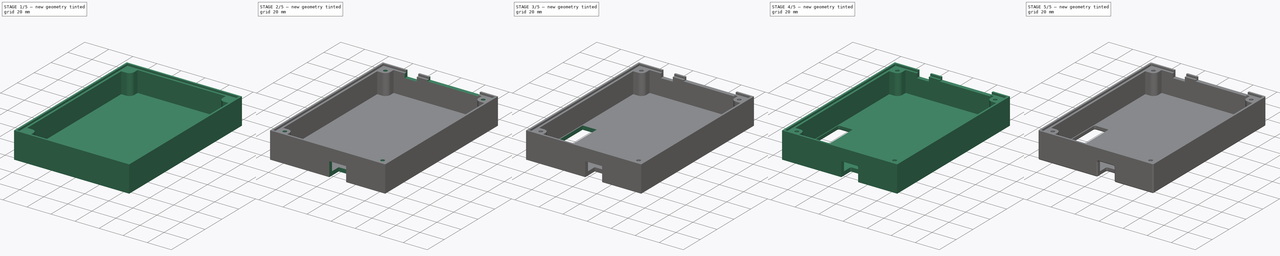
[diagram: build sequence overview — one tinted view per stage of 5, left to right]
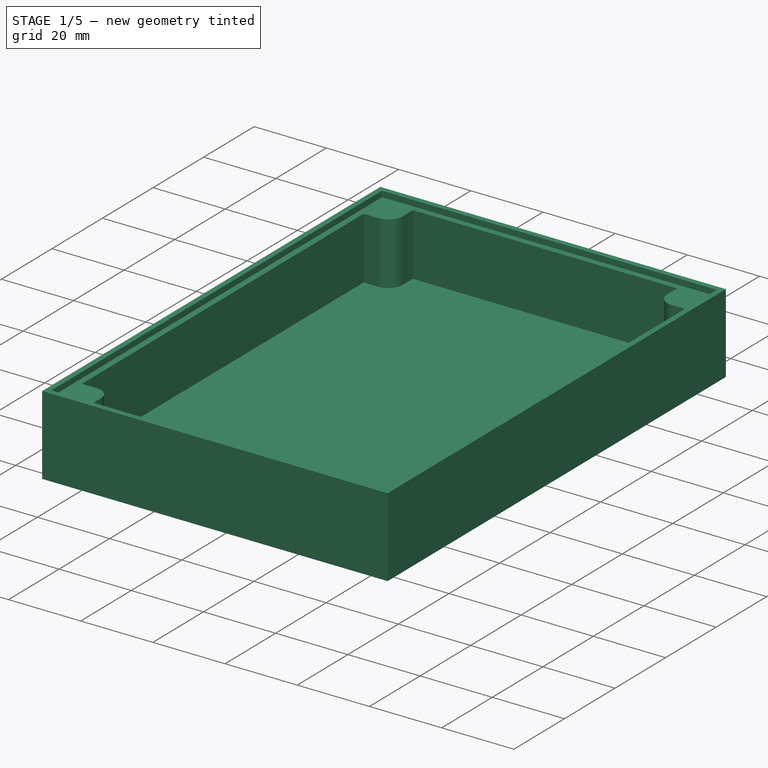
[diagram: stage 1 of 5 — iso view after this stage's code; geometry added in this stage tinted green]
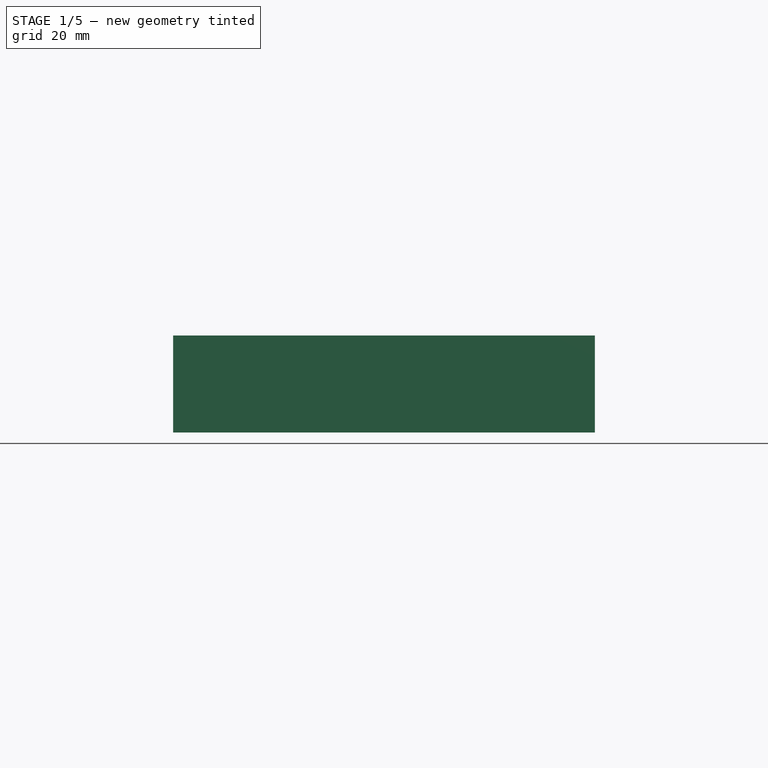
[diagram: stage 1 of 5 — front view after this stage's code; geometry added in this stage tinted green]
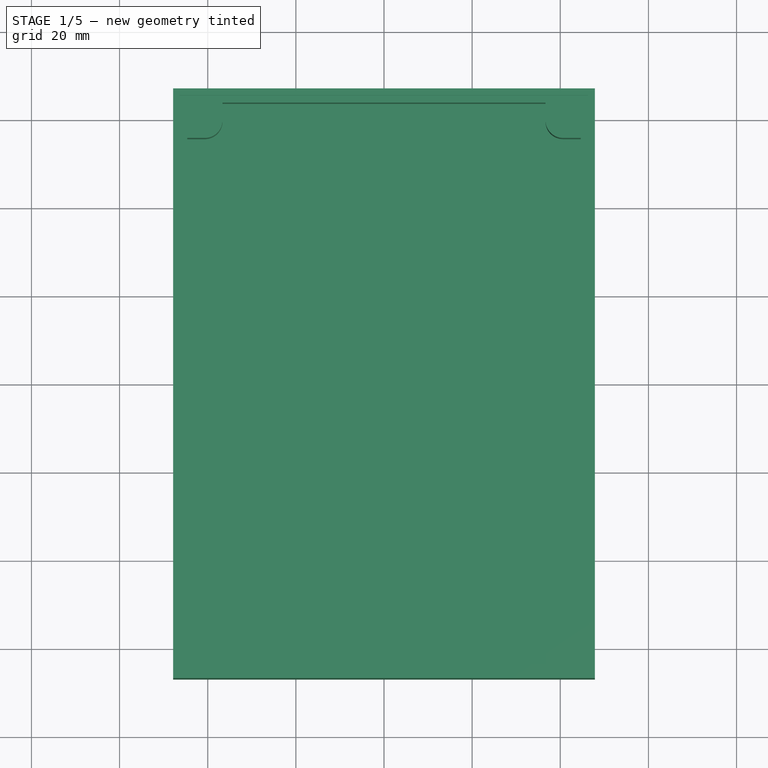
[diagram: stage 1 of 5 — top view after this stage's code; geometry added in this stage tinted green]
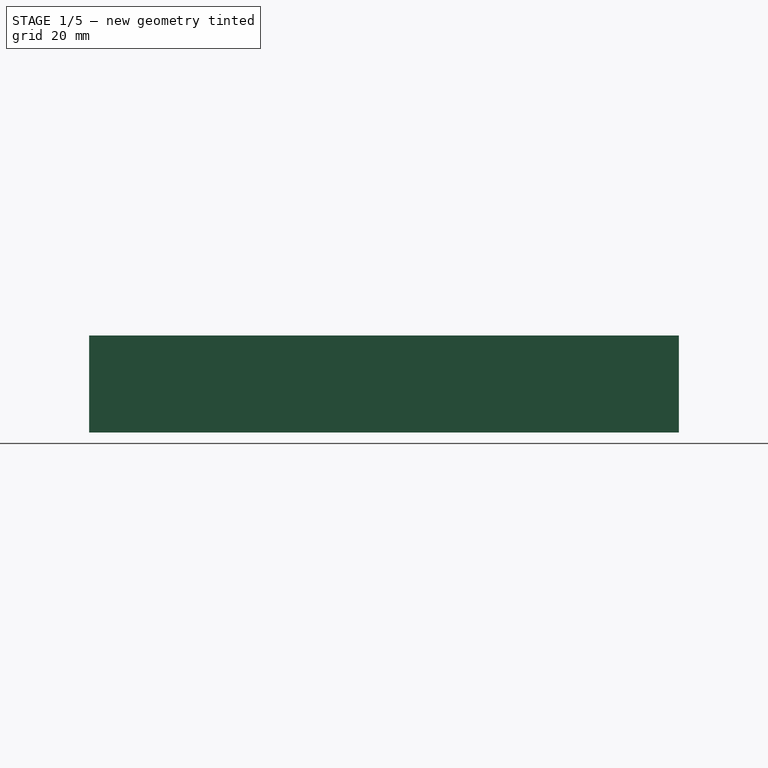
[diagram: stage 1 of 5 — right view after this stage's code; geometry added in this stage tinted green]
FCSTD DOCUMENT  (FreeCAD 0.20R29177 (Git))
Label: enclosure_top
License: All rights reserved
LicenseURL: http://en.wikipedia.org/wiki/All_rights_reserved
objects: Sketcher::SketchObject×12, PartDesign::Pocket×10, PartDesign::Fillet×5, PartDesign::Pad×4, Part::Part2DObjectPython×4, PartDesign::Plane×3, Spreadsheet::Sheet×1, PartDesign::Body×1
note: 58 computed .brp shape members not serialized (recipe doc carries the construction recipe); baked Part::Feature solids carry a one-line shape summary decoded from their .brp

FEATURE [Spreadsheet::Sheet] Spreadsheet
  cells = A2=PCB Dimensions; A3=PCBLength; B3(PCBLength)==127mm; A4=PCBWidth; B4(PCBWidth)==88.90000000000001mm; A5=PCBThickness; B5(PCBThickness)==1.6mm; A6=PCBTermTabLength; B6(PCBTermTabLength)==17.8mm; A7=PCBTermTabWidth; B7(PCBTermTabWidth)==38.1mm; A8=PCBTermTabOffsetLeft; B8(PCBTermTabOffsetLeft)==12.7mm; A9=PCBTermTabOffsetRight; B9(PCBTermTabOffsetRight)==38.1mm; A10=PCBTermTabCenterFromLeft; B10(PCBTermTabCenterFromLeft)==PCBTermTabOffsetLeft + 0.5 * PCBTermTabWidth; A11=PCB3PinConnCenterFromRight; B11(PCB3PinConnCenterFromRight)==22.1mm; A12=PCB3PinConnWidth; B12(PCB3PinConnWidth)==8mm; A13=PCB3PinConnHeight; B13(PCB3PinConnHeight)==2.6mm; A14=PCBMountHoleLength; B14(PCBMountHoleLength)==119.38mm; A15=PCBMountHoleWidth; B15(PCBMountHoleWidth)==81.28mm; A16=PCBMountHoleDiameter; B16(PCBMountHoleDiameter)==3.1mm; C16=4-40; A17=PCBMountScrewHeadDiameter; B17(PCBMountScrewHeadDiameter)==5.6mm; A18=PCBMountScrewHeadHeight; B18(PCBMountScrewHeadHeight)==2mm; A19=PCBComponentHeight; B19(PCBComponentHeight)==16.2mm; A20=PCBTeensyCenterFromLeft; B20(PCBTeensyCenterFromLeft)==36.068mm; A21=PCBTeensyUSBConnLength; B21(PCBTeensyUSBConnLength)==8mm; A22=PCBTeensyUSBConnClearanceHeight; B22(PCBTeensyUSBConnClearanceHeight)==10mm; A23=PCBHeader5X2ToCenterX; B23(PCBHeader5X2ToCenterX)==38.1mm; A24=PCBHeader5X2ToCenterY; B24(PCBHeader5X2ToCenterY)==29.464mm; A25=PCBHeader5X2Length; B25(PCBHeader5X2Length)==46.2mm; A26=PCBHeader5X2Width; B26(PCBHeader5X2Width)==9.699999999999999mm; A28=Margins; A29=MarginOutsideBorder; B29(MarginOutsideBorder)==0.2mm; A30=MarginInsideBorder; B30(MarginInsideBorder)==0mm; A31=MarginPCBComponents; B31(MarginPCBComponents)==1mm; A32=MarginTopBottomLip; B32(MarginTopBottomLip)==0.2mm; A33=MarginMountHoleHexNut; B33(MarginMountHoleHexNut)==0.1mm; A34=MarginTermTabCutoutSide; B34(MarginTermTabCutoutSide)==2mm; A35=MarginTermTabCutoutDepth; B35(MarginTermTabCutoutDepth)==1mm; A36=MarginPinConnCutoutSide; B36(MarginPinConnCutoutSide)==1mm; A37=MarginPinConnCutoutDepth; B37(MarginPinConnCutoutDepth)==1mm; A38=MarginMountScrewHeadDiameter; B38(MarginMountScrewHeadDiameter)==1mm; A39=MarginMountScrewHeadDepth; B39(MarginMountScrewHeadDepth)==0.5mm; A40=MarginHeader5X2; B40(MarginHeader5X2)==1mm; A42=Enclosure Dimensions; A43=Length; B43(Length)==PCBLength + 2 * MarginOutsideBorder + 2 * WallThickness; A44=Width; B44(Width)==PCBWidth + 2 * MarginOutsideBorder + 2 * WallThickness; A45=WallThickness; B45(WallThickness)==3.2mm; A46=InsideLength; B46(InsideLength)==Length - 2 * WallThickness - 2 * MarginInsideBorder; A47=InsideWidth; B47(InsideWidth)==Width - 2 * WallThickness - 2 * MarginInsideBorder; A48=SideWallHeight; B48(SideWallHeight)==PCBComponentHeight + MarginPCBComponents; A49=LipDatumPlaneHeight; B49(LipDatumPlaneHeight)==WallThickness + SideWallHeight + LipHeight; A50=LipThickness; B50(LipThickness)==0.5 * WallThickness - 0.5 * MarginTopBottomLip; A51=LipHeight; B51(LipHeight)==PCBThickness; A52=LipInsideLength; B52(LipInsideLength)==Length - 2 * LipThickness; A53=LipInsideWidth; B53(LipInsideWidth)==Width - 2 * LipThickness; A54=LipOutsideLength; B54(LipOutsideLength)==Length; A55=LipOutsideWidth; B55(LipOutsideWidth)==Width; A56=MountHoleBossDiameter; B56(MountHoleBossDiameter)==8mm; A57=MountHoleHexNutThickness; B57(MountHoleHexNutThickness)==0.0625in; C57=4-40, McMaster-Carr 90760A160; A58=MountHoleHexNutShortDiagonal; B58(MountHoleHexNutShortDiagonal)==0.1875in; A59=MountHoleHexNutLongDiagonal; B59(MountHoleHexNutLongDiagonal)==2 * MountHoleHexNutShortDiagonal / sqrt(3); A60=MountHoleHexNutSideLength; B60(MountHoleHexNutSideLength)==MountHoleHexNutShortDiagonal / sqrt(3); A61=MountHoleHexPocketLongDiagonal; B61(MountHoleHexPocketLongDiagonal)==MountHoleHexNutLongDiagonal + 2 * MarginMountHoleHexNut; A62=MountHoleHexPocketDepth; B62(MountHoleHexPocketDepth)==MountHoleHexNutThickness + 2 * MarginMountHoleHexNut; A63=RubberFootHoleDiameter; B63(RubberFootHoleDiameter)==13mm; A64=RubberFootHoleDepth; B64(RubberFootHoleDepth)==0.75mm; A65=RubberFootPatternOffset; B65(RubberFootPatternOffset)==20mm; A66=RubberFootPatternLength; B66(RubberFootPatternLength)==PCBMountHoleLength - RubberFootPatternOffset; A67=RubberFootPatternWidth; B67(RubberFootPatternWidth)==PCBMountHoleWidth - RubberFootPatternOffset; A68=TermTabCutoutCenterX; B68(TermTabCutoutCenterX)==0.5 * PCBWidth - PCBTermTabCenterFromLeft; A69=TermTabCutoutBotomY; B69(TermTabCutoutBotomY)==0.5 * Length - 0.75 * TermTabCutoutLength; A70=TermTabCutoutLength; B70(TermTabCutoutLength)==2 * WallThickness; A71=TermTabCutoutWidth; B71(TermTabCutoutWidth)==PCBTermTabWidth + 2 * MarginTermTabCutoutSide; A72=TermTabCutoutDepth; B72(TermTabCutoutDepth)==PCBThickness + MarginTermTabCutoutDepth; A73=PinConnCutoutCenterX; B73(PinConnCutoutCenterX)==0.5 * PCBWidth - PCB3PinConnCenterFromRight; A74=PinConnCutoutBottomY; B74(PinConnCutoutBottomY)==0.5 * Length - 0.75 * PinConnCutoutLength; A75=PinConnCutoutLength; B75(PinConnCutoutLength)==2 * WallThickness; A76=PinConnCutoutWidth; B76(PinConnCutoutWidth)==PCB3PinConnWidth + 2 * MarginPinConnCutoutSide; A77=PinConnCutoutDepth; B77(PinConnCutoutDepth)==PCBThickness + PCB3PinConnHeight + MarginPinConnCutoutDepth; A78=TeensyCutoutCenterX; B78(TeensyCutoutCenterX)==0.5 * PCBWidth - PCBTeensyCenterFromLeft; A79=TeensyCutoutTopY; B79(TeensyCutoutTopY)==0.5 * Length - 0.5 * TeensyCutoutLength; A80=TeensyCutoutWidth; B80(TeensyCutoutWidth)==14mm; A81=TeensyCutoutLength; B81(TeensyCutoutLength)==2 * (PCBTeensyUSBConnLength + MarginInsideBorder + WallThickness); A82=TeensyCutoutDepth; B82(TeensyCutoutDepth)==WallThickness + SideWallHeight + LipHeight - PCBTeensyUSBConnClearanceHeight; A83=MountScrewHeadCutoutDiameter; B83(MountScrewHeadCutoutDiameter)==PCBMountScrewHeadDiameter + MarginMountScrewHeadDiameter; A84=MountScrewHeadCutoutDepth; B84(MountScrewHeadCutoutDepth)==PCBMountScrewHeadHeight + MarginMountScrewHeadDepth; A85=Header5X2CutoutCenterX; B85(Header5X2CutoutCenterX)==PCBHeader5X2ToCenterX; A86=Header5X2CutoutCenterY; B86(Header5X2CutoutCenterY)==PCBHeader5X2ToCenterY; A87=Header5X2CutoutLength; B87(Header5X2CutoutLength)==PCBHeader5X2Length + 2 * MarginHeader5X2; A88=Header5X2CutoutWidth; B88(Header5X2CutoutWidth)==PCBHeader5X2Width + 2 * MarginHeader5X2; A89=OutsideFilletRadius; B89(OutsideFilletRadius)==1mm; A90=LipFilletRadius; B90(LipFilletRadius)==0.75mm; A91=USBCutoutFilletRadius; B91(USBCutoutFilletRadius)==1mm; A92=Header5X2CutoutFillet; B92(Header5X2CutoutFillet)==1mm; A93=RodeostatTextLength; B93(RodeostatTextLength)==85.122mm; A94=RodeostatTextWidth; B94(RodeostatTextWidth)==9.396000000000001mm; A95=RodeostatTextBoxLength; B95(RodeostatTextBoxLength)==RodeostatTextLength + 1mm; A96=RodeostatTextBoxWidth; B96(RodeostatTextBoxWidth)==RodeostatTextWidth + 1mm; A97=RodeostatTextPositionX; B97(RodeostatTextPositionX)==-(0.5 * RodeostatTextWidth + 0mm); A98=RodeostatTextPositionY; B98(RodeostatTextPositionY)==-(0.5 * RodeostatTextLength + 0mm); A99=RodeostatTextDepth; B99(RodeostatTextDepth)==0.5mm; A101=Electrode Labels; A102=ElectrodeLabelSize; B102(ElectrodeLabelSize)==2.2mm; A103=WRKElectrodeString; B103(WRKElectrodeString)=W; A104=WRKElectrodePosX; B104(WRKElectrodePosX)==-27.7mm; A105=WRKElectrodePosY; B105(WRKElectrodePosY)==66.90000000000001mm; +20 more cells
FEATURE [Sketcher::SketchObject] Sketch  label="TopSketch"
  FullyConstrained = true
  MapMode = 5
  Support = -> [XY_Plane]
  expr: Constraints[10] = Spreadsheet.Width
  expr: Constraints[9] = Spreadsheet.Length
  sketch-geometry (4):
    g0: LineSegment StartX=-47.85 StartY=66.9 StartZ=0 EndX=47.85 EndY=66.9 EndZ=0
    g1: LineSegment StartX=47.85 StartY=66.9 StartZ=0 EndX=47.85 EndY=-66.9 EndZ=0
    g2: LineSegment StartX=47.85 StartY=-66.9 StartZ=0 EndX=-47.85 EndY=-66.9 EndZ=0
    g3: LineSegment StartX=-47.85 StartY=-66.9 StartZ=0 EndX=-47.85 EndY=66.9 EndZ=0
  constraints (11):
    c: Coincident(g0,g1)
    c: Coincident(g1,g2)
    c: Coincident(g2,g3)
    c: Coincident(g3,g0)
    c: Horizontal(g0)
    c: Horizontal(g2)
    c: Vertical(g1)
    c: Vertical(g3)
    c: Symmetric(g0,g1,g-1)
    c: Distance(g1) = 133.8
    c: Distance(g2) = 95.7
FEATURE [PartDesign::Pad] Pad  label="TopPad"
  Direction = (0,0,1)
  Length = 3.2
  Length2 = 10
  Profile = -> Sketch
  ReferenceAxis = -> Sketch [N_Axis]
  Type = 0
  expr: Length = Spreadsheet.WallThickness
FEATURE [PartDesign::Plane] DatumPlane  label="InsideRoofDatumPlane"
  AttachmentOffset = pos=(0,0,3.2) rot=(0,0,1;0rad)
  Length = 118.332
  MapMode = 5
  Placement = pos=(0,0,3.2) rot=(0,0,1;0rad)
  ResizeMode = 0
  Support = -> [XY_Plane]
  Width = 156.432
  expr: .AttachmentOffset.Base.z = Spreadsheet.WallThickness
FEATURE [Sketcher::SketchObject] Sketch001  label="SideWallSketch"
  FullyConstrained = true
  MapMode = 5
  Placement = pos=(0,0,3.2) rot=(0,0,1;0rad)
  Support = -> [DatumPlane]
  expr: Constraints[10] = Spreadsheet.Width
  expr: Constraints[20] = Spreadsheet.InsideLength
  expr: Constraints[21] = Spreadsheet.InsideWidth
  expr: Constraints[9] = Spreadsheet.Length
  sketch-geometry (8):
    g0: LineSegment StartX=-47.85 StartY=66.9 StartZ=0 EndX=47.85 EndY=66.9 EndZ=0
    g1: LineSegment StartX=47.85 StartY=66.9 StartZ=0 EndX=47.85 EndY=-66.9 EndZ=0
    g2: LineSegment StartX=47.85 StartY=-66.9 StartZ=0 EndX=-47.85 EndY=-66.9 EndZ=0
    g3: LineSegment StartX=-47.85 StartY=-66.9 StartZ=0 EndX=-47.85 EndY=66.9 EndZ=0
    g4: LineSegment StartX=-44.65 StartY=63.7 StartZ=0 EndX=44.65 EndY=63.7 EndZ=0
    g5: LineSegment StartX=44.65 StartY=63.7 StartZ=0 EndX=44.65 EndY=-63.7 EndZ=0
    g6: LineSegment StartX=44.65 StartY=-63.7 StartZ=0 EndX=-44.65 EndY=-63.7 EndZ=0
    g7: LineSegment StartX=-44.65 StartY=-63.7 StartZ=0 EndX=-44.65 EndY=63.7 EndZ=0
  constraints (22):
    c: Coincident(g0,g1)
    c: Coincident(g1,g2)
    c: Coincident(g2,g3)
    c: Coincident(g3,g0)
    c: Horizontal(g0)
    c: Horizontal(g2)
    c: Vertical(g1)
    c: Vertical(g3)
    c: Symmetric(g0,g1,g-1)
    c: Distance(g1) = 133.8
    c: Distance(g2) = 95.7
    c: Coincident(g4,g5)
    c: Coincident(g5,g6)
    c: Coincident(g6,g7)
    c: Coincident(g7,g4)
    c: Horizontal(g4)
    c: Horizontal(g6)
    c: Vertical(g5)
    c: Vertical(g7)
    c: Symmetric(g4,g5,g-1)
    c: Distance(g5) = 127.4
    c: Distance(g6) = 89.3
FEATURE [PartDesign::Pad] Pad001  label="SideWallPad"
  BaseFeature = -> Pad
  Direction = (0,0,1)
  Length = 17.2
  Length2 = 10
  Profile = -> Sketch001
  ReferenceAxis = -> Sketch001 [N_Axis]
  Type = 0
  expr: Length = Spreadsheet.SideWallHeight
FEATURE [PartDesign::Plane] DatumPlane001  label="LipDatumPlane"
  AttachmentOffset = pos=(0,0,22) rot=(0,0,1;0rad)
  Length = 118.332
  MapMode = 5
  Placement = pos=(0,0,22) rot=(0,0,1;0rad)
  ResizeMode = 0
  Support = -> [XY_Plane]
  Width = 156.432
  expr: .AttachmentOffset.Base.z = Spreadsheet.LipDatumPlaneHeight
FEATURE [Sketcher::SketchObject] Sketch002  label="LipSketch"
  FullyConstrained = true
  MapMode = 5
  Placement = pos=(0,0,22) rot=(0,0,1;0rad)
  Support = -> [DatumPlane001]
  expr: Constraints[10] = Spreadsheet.LipInsideWidth
  expr: Constraints[20] = Spreadsheet.LipOutsideLength
  expr: Constraints[21] = Spreadsheet.LipOutsideWidth
  expr: Constraints[9] = Spreadsheet.LipInsideLength
  sketch-geometry (8):
    g0: LineSegment StartX=-46.35 StartY=65.4 StartZ=0 EndX=46.35 EndY=65.4 EndZ=0
    g1: LineSegment StartX=46.35 StartY=65.4 StartZ=0 EndX=46.35 EndY=-65.4 EndZ=0
    g2: LineSegment StartX=46.35 StartY=-65.4 StartZ=0 EndX=-46.35 EndY=-65.4 EndZ=0
    g3: LineSegment StartX=-46.35 StartY=-65.4 StartZ=0 EndX=-46.35 EndY=65.4 EndZ=0
    g4: LineSegment StartX=-47.85 StartY=66.9 StartZ=0 EndX=47.85 EndY=66.9 EndZ=0
    g5: LineSegment StartX=47.85 StartY=66.9 StartZ=0 EndX=47.85 EndY=-66.9 EndZ=0
    g6: LineSegment StartX=47.85 StartY=-66.9 StartZ=0 EndX=-47.85 EndY=-66.9 EndZ=0
    g7: LineSegment StartX=-47.85 StartY=-66.9 StartZ=0 EndX=-47.85 EndY=66.9 EndZ=0
  constraints (22):
    c: Coincident(g0,g1)
    c: Coincident(g1,g2)
    c: Coincident(g2,g3)
    c: Coincident(g3,g0)
    c: Horizontal(g0)
    c: Horizontal(g2)
    c: Vertical(g1)
    c: Vertical(g3)
    c: Symmetric(g0,g1,g-1)
    c: Distance(g1) = 130.8
    c: Distance(g2) = 92.7
    c: Coincident(g4,g5)
    c: Coincident(g5,g6)
    c: Coincident(g6,g7)
    c: Coincident(g7,g4)
    c: Horizontal(g4)
    c: Horizontal(g6)
    c: Vertical(g5)
    c: Vertical(g7)
    c: Symmetric(g4,g5,g-1)
    c: Distance(g5) = 133.8
    c: Distance(g6) = 95.7
FEATURE [PartDesign::Pad] Pad002  label="LipPad"
  BaseFeature = -> Pad001
  Direction = (0,0,1)
  Length = 1.6
  Length2 = 10
  Profile = -> Sketch002
  ReferenceAxis = -> Sketch002 [N_Axis]
  Reversed = true
  Type = 0
  expr: Length = Spreadsheet.LipHeight
FEATURE [Sketcher::SketchObject] Sketch003  label="MountHoleBossSketch"
  FullyConstrained = true
  MapMode = 5
  Placement = pos=(0,0,3.2) rot=(0,0,1;0rad)
  Support = -> [DatumPlane]
  expr: Constraints[10] = Spreadsheet.LipInsideWidth
  expr: Constraints[20] = Spreadsheet.PCBMountHoleLength
  expr: Constraints[21] = Spreadsheet.PCBMountHoleWidth
  expr: Constraints[35] = Spreadsheet.MountHoleBossDiameter
  expr: Constraints[49] = Spreadsheet.MountHoleBossDiameter
  expr: Constraints[63] = Spreadsheet.MountHoleBossDiameter
  expr: Constraints[77] = Spreadsheet.MountHoleBossDiameter
  expr: Constraints[9] = Spreadsheet.LipInsideLength
  sketch-geometry (28):
    g0: LineSegment StartX=-46.35 StartY=65.4 StartZ=0 EndX=46.35 EndY=65.4 EndZ=0
    g1: LineSegment StartX=46.35 StartY=65.4 StartZ=0 EndX=46.35 EndY=-65.4 EndZ=0
    g2: LineSegment StartX=46.35 StartY=-65.4 StartZ=0 EndX=-46.35 EndY=-65.4 EndZ=0
    g3: LineSegment StartX=-46.35 StartY=-65.4 StartZ=0 EndX=-46.35 EndY=65.4 EndZ=0
    g4: LineSegment StartX=-40.64 StartY=59.69 StartZ=0 EndX=40.64 EndY=59.69 EndZ=0
    g5: LineSegment StartX=40.64 StartY=59.69 StartZ=0 EndX=40.64 EndY=-59.69 EndZ=0
    g6: LineSegment StartX=40.64 StartY=-59.69 StartZ=0 EndX=-40.64 EndY=-59.69 EndZ=0
    g7: LineSegment StartX=-40.64 StartY=-59.69 StartZ=0 EndX=-40.64 EndY=59.69 EndZ=0
    g8: ArcOfCircle CenterX=-40.64 CenterY=59.69 CenterZ=0 NormalX=0 NormalY=0 NormalZ=1 AngleXU=0 Radius=4 StartAngle=4.71239 EndAngle=6.28319
    g9: LineSegment StartX=-46.35 StartY=55.69 StartZ=0 EndX=-40.64 EndY=55.69 EndZ=0
    g10: LineSegment StartX=-36.64 StartY=65.4 StartZ=0 EndX=-36.64 EndY=59.69 EndZ=0
    g11: LineSegment StartX=-46.35 StartY=55.69 StartZ=0 EndX=-46.35 EndY=65.4 EndZ=0
    g12: LineSegment StartX=-46.35 StartY=65.4 StartZ=0 EndX=-36.64 EndY=65.4 EndZ=0
    g13: ArcOfCircle CenterX=40.64 CenterY=59.69 CenterZ=0 NormalX=0 NormalY=0 NormalZ=1 AngleXU=0 Radius=4 StartAngle=3.14159 EndAngle=4.71239
    g14: LineSegment StartX=36.64 StartY=65.4 StartZ=0 EndX=36.64 EndY=59.69 EndZ=0
    g15: LineSegment StartX=40.64 StartY=55.69 StartZ=0 EndX=46.35 EndY=55.69 EndZ=0
    g16: LineSegment StartX=36.64 StartY=65.4 StartZ=0 EndX=46.35 EndY=65.4 EndZ=0
    g17: LineSegment StartX=46.35 StartY=65.4 StartZ=0 EndX=46.35 EndY=55.69 EndZ=0
    g18: ArcOfCircle CenterX=-40.64 CenterY=-59.69 CenterZ=0 NormalX=0 NormalY=0 NormalZ=1 AngleXU=0 Radius=4 StartAngle=1.2e-15 EndAngle=1.5708
    g19: LineSegment StartX=-36.64 StartY=-59.69 StartZ=0 EndX=-36.64 EndY=-65.4 EndZ=0
    g20: LineSegment StartX=-40.64 StartY=-55.69 StartZ=0 EndX=-46.35 EndY=-55.69 EndZ=0
    g21: LineSegment StartX=-46.35 StartY=-65.4 StartZ=0 EndX=-36.64 EndY=-65.4 EndZ=0
    g22: LineSegment StartX=-46.35 StartY=-55.69 StartZ=0 EndX=-46.35 EndY=-65.4 EndZ=0
    g23: ArcOfCircle CenterX=40.64 CenterY=-59.69 CenterZ=0 NormalX=0 NormalY=0 NormalZ=1 AngleXU=0 Radius=4 StartAngle=1.5708 EndAngle=3.14159
    g24: LineSegment StartX=40.64 StartY=-55.69 StartZ=0 EndX=46.35 EndY=-55.69 EndZ=0
    g25: LineSegment StartX=36.64 StartY=-59.69 StartZ=0 EndX=36.64 EndY=-65.4 EndZ=0
    g26: LineSegment StartX=46.35 StartY=-55.69 StartZ=0 EndX=46.35 EndY=-65.4 EndZ=0
    g27: LineSegment StartX=36.64 StartY=-65.4 StartZ=0 EndX=46.35 EndY=-65.4 EndZ=0
  constraints (78):
    c: Coincident(g0,g1)
    c: Coincident(g1,g2)
    c: Coincident(g2,g3)
    c: Coincident(g3,g0)
    c: Horizontal(g0)
    c: Horizontal(g2)
    c: Vertical(g1)
    c: Vertical(g3)
    c: Symmetric(g0,g1,g-1)
    c: Distance(g1) = 130.8
    c: Distance(g2) = 92.7
    c: Coincident(g4,g5)
    c: Coincident(g5,g6)
    c: Coincident(g6,g7)
    c: Coincident(g7,g4)
    c: Horizontal(g4)
    c: Horizontal(g6)
    c: Vertical(g5)
    c: Vertical(g7)
    c: Symmetric(g4,g5,g-1)
    c: Distance(g5) = 119.38
    c: Distance(g6) = 81.28
    c: Coincident(g8,g4)
    c: PointOnObject(g8,g4)
    c: PointOnObject(g8,g7)
    c: Horizontal(g9)
    c: Vertical(g10)
    c: Coincident(g10,g8)
    c: Coincident(g9,g8)
    c: PointOnObject(g9,g3)
    c: PointOnObject(g10,g0)
    c: Coincident(g11,g0)
    c: Coincident(g11,g9)
    c: Coincident(g12,g10)
    c: Coincident(g12,g11)
    c: Diameter(g8) = 8
    c: Coincident(g13,g4)
    c: PointOnObject(g13,g4)
    c: PointOnObject(g13,g5)
    c: Vertical(g14)
    c: Horizontal(g15)
    c: Coincident(g13,g15)
    c: Coincident(g14,g13)
    c: PointOnObject(g15,g1)
    c: PointOnObject(g14,g0)
    c: Coincident(g14,g16)
    c: Coincident(g16,g0)
    c: Coincident(g17,g16)
    c: Coincident(g17,g15)
    c: Diameter(g13) = 8
    c: Coincident(g6,g18)
    c: PointOnObject(g18,g7)
    c: PointOnObject(g18,g6)
    c: Vertical(g19)
    c: Horizontal(g20)
    c: Coincident(g19,g18)
    c: PointOnObject(g19,g2)
    c: Coincident(g20,g18)
    c: PointOnObject(g20,g3)
    c: Coincident(g21,g19)
    c: Coincident(g21,g2)
    c: Coincident(g22,g21)
    c: Coincident(g22,g20)
    c: Diameter(g18) = 8
    c: Coincident(g23,g5)
    c: PointOnObject(g23,g5)
    c: PointOnObject(g23,g6)
    c: Horizontal(g24)
    c: Vertical(g25)
    c: Coincident(g23,g24)
    c: Coincident(g25,g23)
    c: PointOnObject(g24,g1)
    c: PointOnObject(g25,g2)
    c: Coincident(g24,g26)
    c: Coincident(g26,g1)
    c: Coincident(g27,g26)
    c: Coincident(g27,g25)
    c: Diameter(g23) = 8
FEATURE [PartDesign::Pad] Pad003  label="MountHoleBossPad"
  BaseFeature = -> Pad002
  Direction = (0,0,1)
  Length = 17.2
  Length2 = 10
  Profile = -> Sketch003
  ReferenceAxis = -> Sketch003 [N_Axis]
  Type = 0
  expr: Length = Spreadsheet.SideWallHeight
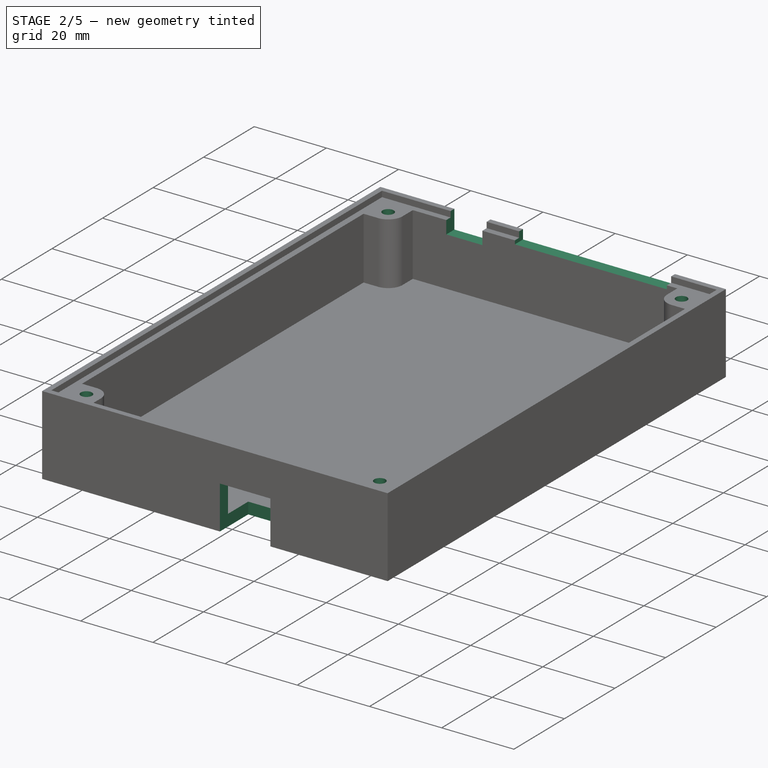
[diagram: stage 2 of 5 — iso view after this stage's code; geometry added in this stage tinted green]
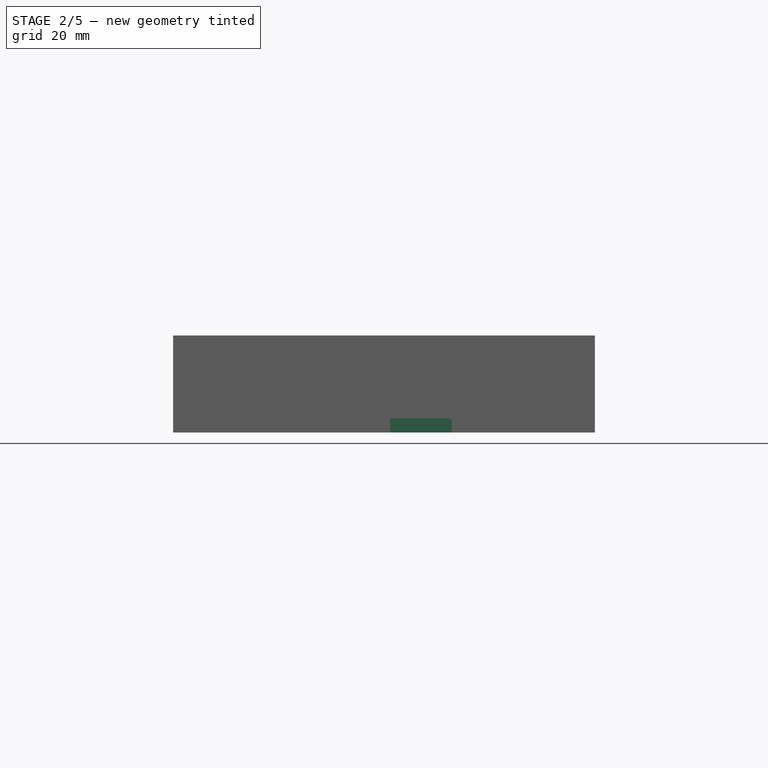
[diagram: stage 2 of 5 — front view after this stage's code; geometry added in this stage tinted green]
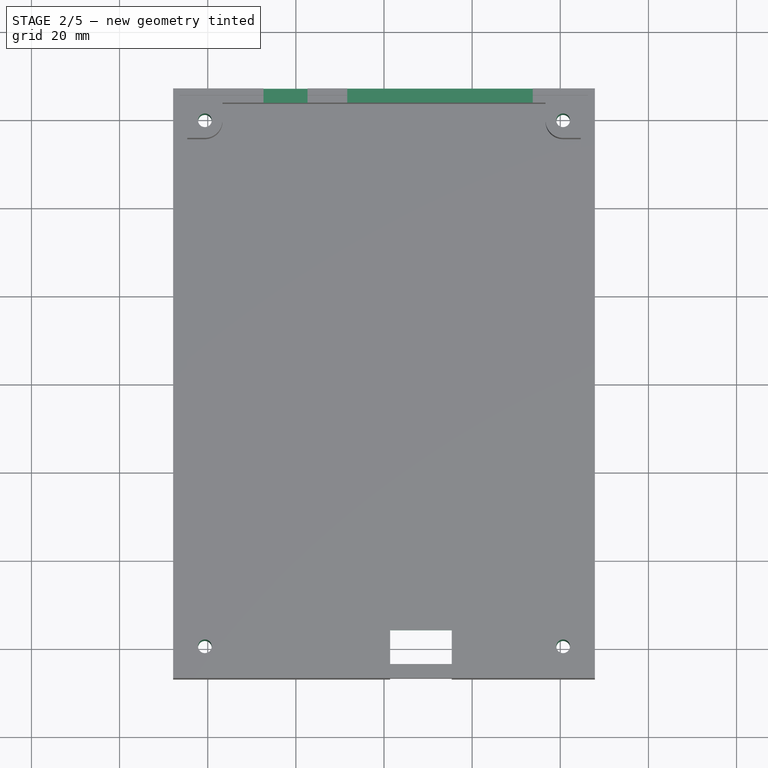
[diagram: stage 2 of 5 — top view after this stage's code; geometry added in this stage tinted green]
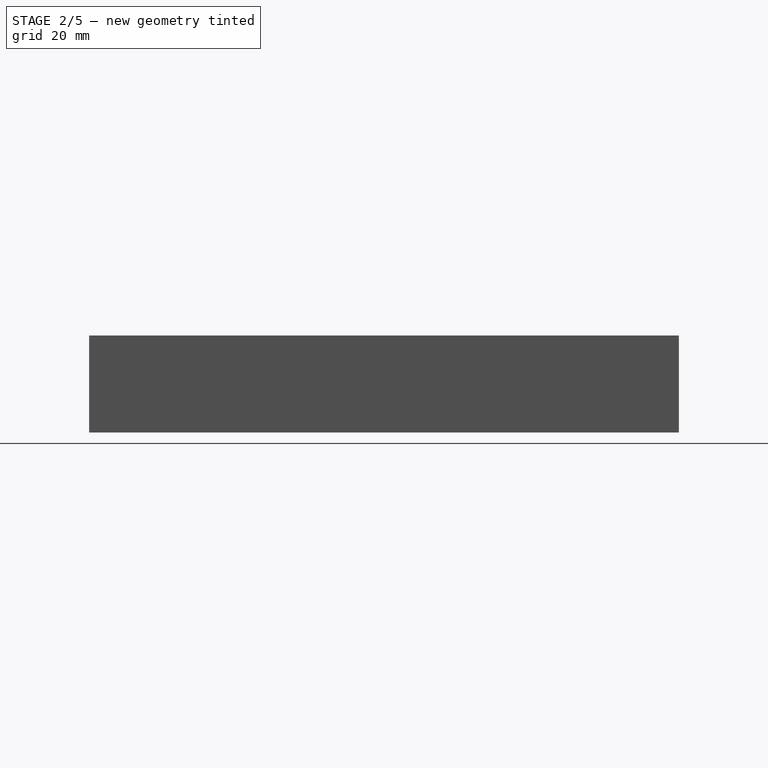
[diagram: stage 2 of 5 — right view after this stage's code; geometry added in this stage tinted green]
FEATURE [Sketcher::SketchObject] Sketch004  label="MountHoleSketch"
  FullyConstrained = true
  MapMode = 5
  Placement = pos=(0,0,22) rot=(0,0,1;0rad)
  Support = -> [DatumPlane001]
  expr: Constraints[10] = Spreadsheet.PCBMountHoleWidth
  expr: Constraints[18] = Spreadsheet.PCBMountHoleDiameter
  expr: Constraints[9] = Spreadsheet.PCBMountHoleLength
  sketch-geometry (8):
    g0: LineSegment StartX=-40.64 StartY=59.69 StartZ=0 EndX=40.64 EndY=59.69 EndZ=0
    g1: LineSegment StartX=40.64 StartY=59.69 StartZ=0 EndX=40.64 EndY=-59.69 EndZ=0
    g2: LineSegment StartX=40.64 StartY=-59.69 StartZ=0 EndX=-40.64 EndY=-59.69 EndZ=0
    g3: LineSegment StartX=-40.64 StartY=-59.69 StartZ=0 EndX=-40.64 EndY=59.69 EndZ=0
    g4: Circle CenterX=-40.64 CenterY=59.69 CenterZ=0 NormalX=0 NormalY=0 NormalZ=1 AngleXU=0 Radius=1.55
    g5: Circle CenterX=40.64 CenterY=59.69 CenterZ=0 NormalX=0 NormalY=0 NormalZ=1 AngleXU=0 Radius=1.55
    g6: Circle CenterX=-40.64 CenterY=-59.69 CenterZ=0 NormalX=0 NormalY=0 NormalZ=1 AngleXU=0 Radius=1.55
    g7: Circle CenterX=40.64 CenterY=-59.69 CenterZ=0 NormalX=0 NormalY=0 NormalZ=1 AngleXU=0 Radius=1.55
  constraints (19):
    c: Coincident(g0,g1)
    c: Coincident(g1,g2)
    c: Coincident(g2,g3)
    c: Coincident(g3,g0)
    c: Horizontal(g0)
    c: Horizontal(g2)
    c: Vertical(g1)
    c: Vertical(g3)
    c: Symmetric(g0,g1,g-1)
    c: Distance(g1) = 119.38
    c: Distance(g2) = 81.28
    c: Equal(g4,g5)
    c: Equal(g5,g7)
    c: Equal(g7,g6)
    c: Coincident(g4,g0)
    c: Coincident(g5,g0)
    c: Coincident(g7,g1)
    c: Coincident(g6,g2)
    c: Diameter(g4) = 3.1
FEATURE [PartDesign::Pocket] Pocket  label="MountHolePocket"
  BaseFeature = -> Pad003
  Direction = (0,0,-1)
  Length = 5
  Length2 = 5
  Profile = -> Sketch004
  ReferenceAxis = -> Sketch004 [N_Axis]
  Type = 1
FEATURE [Sketcher::SketchObject] Sketch007  label="TermTabCutoutSketch"
  FullyConstrained = true
  MapMode = 5
  Placement = pos=(0,0,22) rot=(0,0,1;0rad)
  Support = -> [DatumPlane001]
  expr: Constraints[14] = Spreadsheet.TermTabCutoutWidth
  expr: Constraints[15] = Spreadsheet.TermTabCutoutLength
  expr: Constraints[16] = Spreadsheet.TermTabCutoutCenterX
  expr: Constraints[4] = Spreadsheet.TermTabCutoutBotomY
  sketch-geometry (6):
    g0: LineSegment StartX=0 StartY=0 StartZ=0 EndX=12.7 EndY=0 EndZ=0
    g1: LineSegment StartX=12.7 StartY=0 StartZ=0 EndX=12.7 EndY=62.1 EndZ=0
    g2: LineSegment StartX=-8.35 StartY=68.5 StartZ=0 EndX=33.75 EndY=68.5 EndZ=0
    g3: LineSegment StartX=33.75 StartY=68.5 StartZ=0 EndX=33.75 EndY=62.1 EndZ=0
    g4: LineSegment StartX=33.75 StartY=62.1 StartZ=0 EndX=-8.35 EndY=62.1 EndZ=0
    g5: LineSegment StartX=-8.35 StartY=62.1 StartZ=0 EndX=-8.35 EndY=68.5 EndZ=0
  constraints (17):
    c: Horizontal(g0)
    c: Coincident(g0,g1)
    c: Vertical(g1)
    c: Coincident(g-1,g0)
    c: Distance(g1) = 62.1
    c: Coincident(g2,g3)
    c: Coincident(g3,g4)
    c: Coincident(g4,g5)
    c: Coincident(g5,g2)
    c: Horizontal(g2)
    c: Horizontal(g4)
    c: Vertical(g3)
    c: Vertical(g5)
    c: Symmetric(g4,g3,g1)
    c: Distance(g2) = 42.1
    c: Distance(g3) = 6.4
    c: Distance(g0) = 12.7
FEATURE [Sketcher::SketchObject] Sketch008  label="PinConnCutoutSketch"
  FullyConstrained = true
  MapMode = 5
  Placement = pos=(0,0,22) rot=(0,0,1;0rad)
  Support = -> [DatumPlane001]
  expr: Constraints[14] = Spreadsheet.PinConnCutoutWidth
  expr: Constraints[15] = Spreadsheet.PinConnCutoutLength
  expr: Constraints[16] = Spreadsheet.PinConnCutoutCenterX
  expr: Constraints[4] = Spreadsheet.PinConnCutoutBottomY
  sketch-geometry (6):
    g0: LineSegment StartX=0 StartY=0 StartZ=0 EndX=-22.35 EndY=0 EndZ=0
    g1: LineSegment StartX=-22.35 StartY=0 StartZ=0 EndX=-22.35 EndY=62.1 EndZ=0
    g2: LineSegment StartX=-27.35 StartY=68.5 StartZ=0 EndX=-17.35 EndY=68.5 EndZ=0
    g3: LineSegment StartX=-17.35 StartY=68.5 StartZ=0 EndX=-17.35 EndY=62.1 EndZ=0
    g4: LineSegment StartX=-17.35 StartY=62.1 StartZ=0 EndX=-27.35 EndY=62.1 EndZ=0
    g5: LineSegment StartX=-27.35 StartY=62.1 StartZ=0 EndX=-27.35 EndY=68.5 EndZ=0
  constraints (17):
    c: Horizontal(g0)
    c: Coincident(g0,g1)
    c: Vertical(g1)
    c: Coincident(g-1,g0)
    c: Distance(g1) = 62.1
    c: Coincident(g2,g3)
    c: Coincident(g3,g4)
    c: Coincident(g4,g5)
    c: Coincident(g5,g2)
    c: Horizontal(g2)
    c: Horizontal(g4)
    c: Vertical(g3)
    c: Vertical(g5)
    c: Symmetric(g4,g3,g1)
    c: Distance(g4) = 10
    c: Distance(g3) = 6.4
    c: Distance(g0) = 22.35
FEATURE [PartDesign::Pocket] Pocket001  label="TermTabCutoutPocket"
  BaseFeature = -> Pocket
  Direction = (0,0,-1)
  Length = 2.6
  Length2 = 5
  Profile = -> Sketch007
  ReferenceAxis = -> Sketch007 [N_Axis]
  Type = 0
  expr: Length = Spreadsheet.TermTabCutoutDepth
FEATURE [PartDesign::Pocket] Pocket002  label="PinConnCutoutPocket"
  BaseFeature = -> Pocket001
  Direction = (0,0,-1)
  Length = 5.2
  Length2 = 5
  Profile = -> Sketch008
  ReferenceAxis = -> Sketch008 [N_Axis]
  Type = 0
  expr: Length = Spreadsheet.PinConnCutoutDepth
FEATURE [Sketcher::SketchObject] Sketch009  label="TeensyCutoutSketch"
  FullyConstrained = true
  MapMode = 5
  Support = -> [XY_Plane]
  expr: Constraints[15] = Spreadsheet.TeensyCutoutLength
  expr: Constraints[16] = Spreadsheet.TeensyCutoutWidth
  expr: Constraints[2] = Spreadsheet.TeensyCutoutTopY
  expr: Constraints[3] = Spreadsheet.TeensyCutoutCenterX
  sketch-geometry (6):
    g0: LineSegment StartX=8.382 StartY=0 StartZ=0 EndX=8.382 EndY=-55.7 EndZ=0
    g1: LineSegment StartX=0 StartY=0 StartZ=0 EndX=8.382 EndY=0 EndZ=0
    g2: LineSegment StartX=1.382 StartY=-55.7 StartZ=0 EndX=15.382 EndY=-55.7 EndZ=0
    g3: LineSegment StartX=15.382 StartY=-55.7 StartZ=0 EndX=15.382 EndY=-78.1 EndZ=0
    g4: LineSegment StartX=15.382 StartY=-78.1 StartZ=0 EndX=1.382 EndY=-78.1 EndZ=0
    g5: LineSegment StartX=1.382 StartY=-78.1 StartZ=0 EndX=1.382 EndY=-55.7 EndZ=0
  constraints (17):
    c: Vertical(g0)
    c: Horizontal(g1)
    c: Distance(g0) = 55.7
    c: Distance(g1) = 8.382
    c: Coincident(g0,g1)
    c: Coincident(g1,g-1)
    c: Coincident(g2,g3)
    c: Coincident(g3,g4)
    c: Coincident(g4,g5)
    c: Coincident(g5,g2)
    c: Horizontal(g2)
    c: Horizontal(g4)
    c: Vertical(g3)
    c: Vertical(g5)
    c: Symmetric(g2,g2,g0)
    c: Distance(g3) = 22.4
    c: Distance(g4) = 14
FEATURE [PartDesign::Pocket] Pocket003  label="TeensyCutoutPocket"
  BaseFeature = -> Pocket002
  Direction = (0,0,-1)
  Length = 12
  Length2 = 5
  Profile = -> Sketch009
  ReferenceAxis = -> Sketch009 [N_Axis]
  Reversed = true
  Type = 0
  expr: Length = Spreadsheet.TeensyCutoutDepth
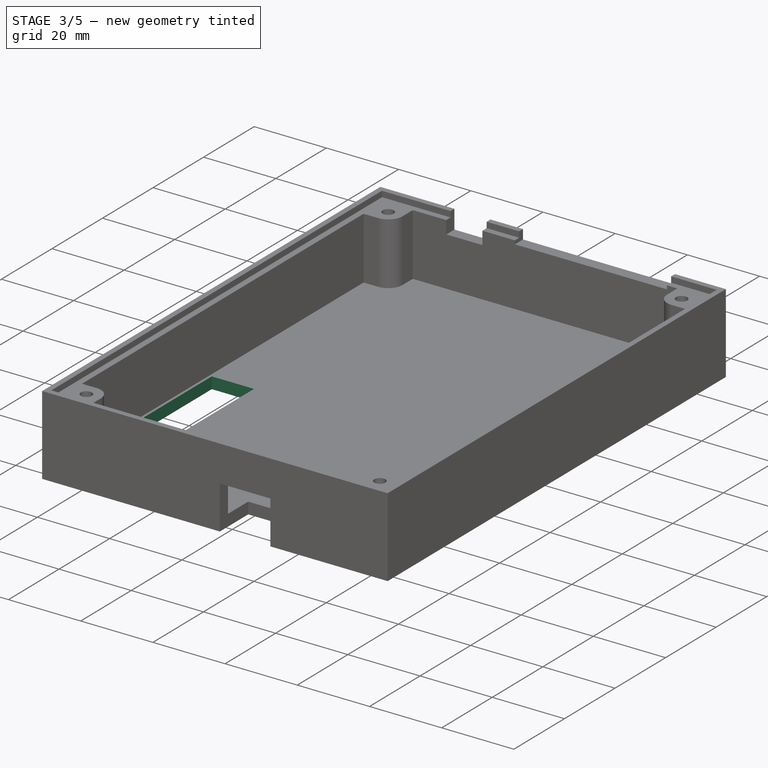
[diagram: stage 3 of 5 — iso view after this stage's code; geometry added in this stage tinted green]
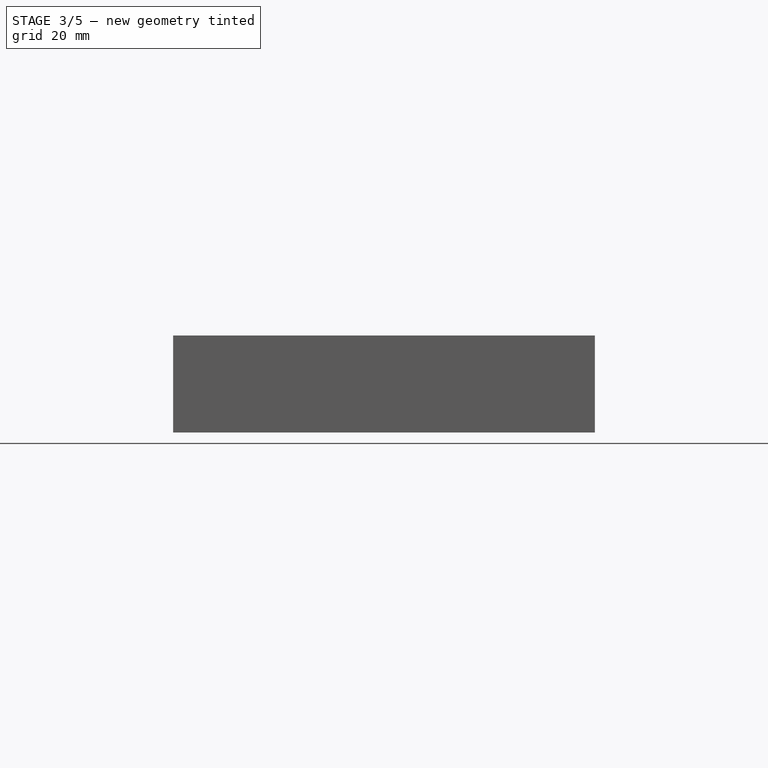
[diagram: stage 3 of 5 — front view after this stage's code; geometry added in this stage tinted green]
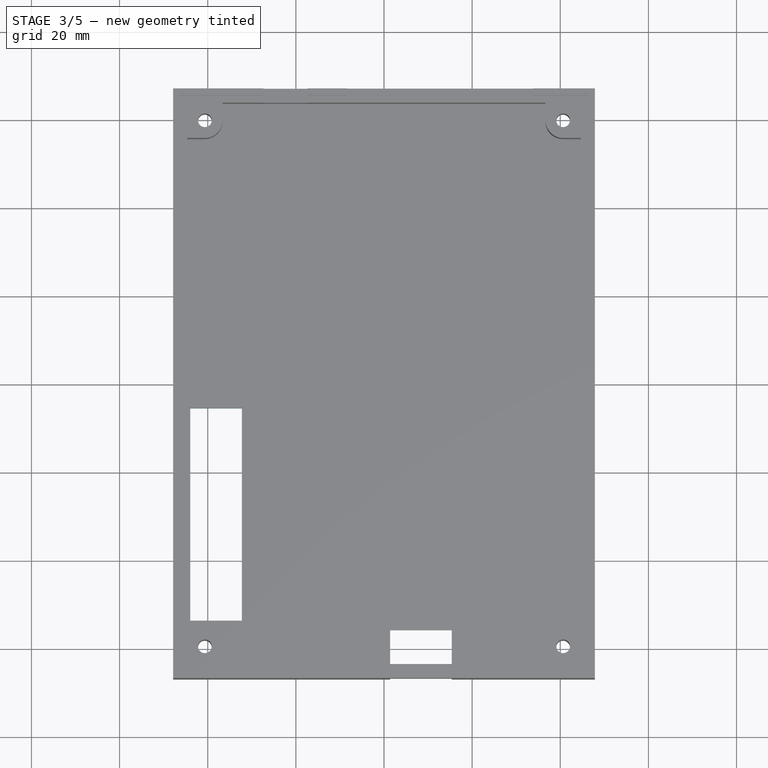
[diagram: stage 3 of 5 — top view after this stage's code; geometry added in this stage tinted green]
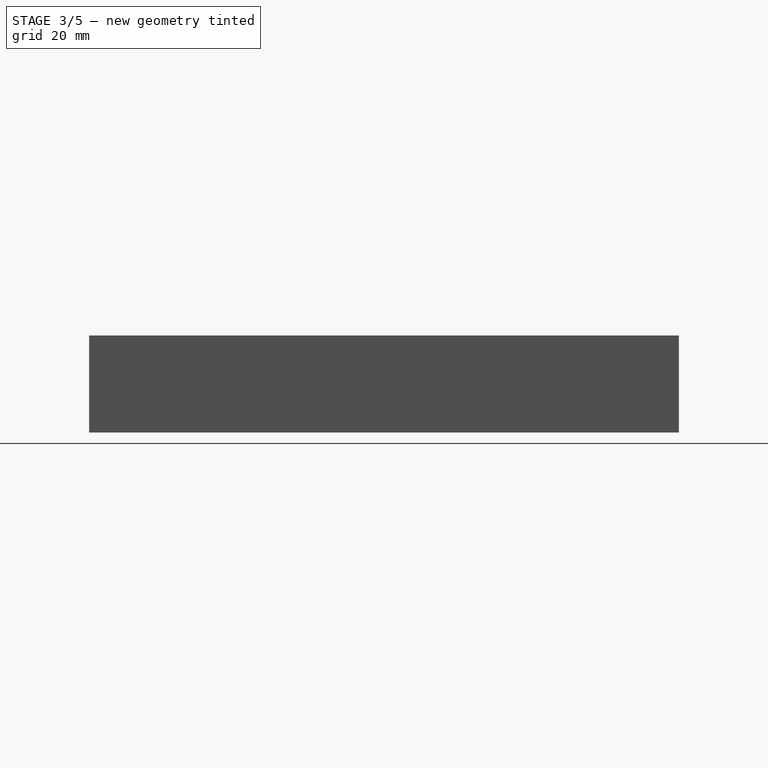
[diagram: stage 3 of 5 — right view after this stage's code; geometry added in this stage tinted green]
FEATURE [Sketcher::SketchObject] Sketch010  label="MountScrewHeadCutoutSketch"
  FullyConstrained = true
  MapMode = 5
  Support = -> [XY_Plane]
  expr: Constraints[10] = Spreadsheet.PCBMountHoleWidth
  expr: Constraints[18] = Spreadsheet.MountScrewHeadCutoutDiameter
  expr: Constraints[9] = Spreadsheet.PCBMountHoleLength
  sketch-geometry (8):
    g0: LineSegment StartX=-40.64 StartY=59.69 StartZ=0 EndX=40.64 EndY=59.69 EndZ=0
    g1: LineSegment StartX=40.64 StartY=59.69 StartZ=0 EndX=40.64 EndY=-59.69 EndZ=0
    g2: LineSegment StartX=40.64 StartY=-59.69 StartZ=0 EndX=-40.64 EndY=-59.69 EndZ=0
    g3: LineSegment StartX=-40.64 StartY=-59.69 StartZ=0 EndX=-40.64 EndY=59.69 EndZ=0
    g4: Circle CenterX=-40.64 CenterY=59.69 CenterZ=0 NormalX=0 NormalY=0 NormalZ=1 AngleXU=0 Radius=3.3
    g5: Circle CenterX=40.64 CenterY=59.69 CenterZ=0 NormalX=0 NormalY=0 NormalZ=1 AngleXU=0 Radius=3.3
    g6: Circle CenterX=-40.64 CenterY=-59.69 CenterZ=0 NormalX=0 NormalY=0 NormalZ=1 AngleXU=0 Radius=3.3
    g7: Circle CenterX=40.64 CenterY=-59.69 CenterZ=0 NormalX=0 NormalY=0 NormalZ=1 AngleXU=0 Radius=3.3
  constraints (19):
    c: Coincident(g0,g1)
    c: Coincident(g1,g2)
    c: Coincident(g2,g3)
    c: Coincident(g3,g0)
    c: Horizontal(g0)
    c: Horizontal(g2)
    c: Vertical(g1)
    c: Vertical(g3)
    c: Symmetric(g0,g1,g-1)
    c: Distance(g1) = 119.38
    c: Distance(g2) = 81.28
    c: Equal(g4,g5)
    c: Equal(g5,g7)
    c: Equal(g7,g6)
    c: Coincident(g0,g4)
    c: Coincident(g5,g0)
    c: Coincident(g6,g2)
    c: Coincident(g7,g1)
    c: Diameter(g4) = 6.6
FEATURE [PartDesign::Pocket] Pocket004  label="MountScrewHeadCutoutPocket"
  BaseFeature = -> Pocket003
  Direction = (0,0,-1)
  Length = 2.5
  Length2 = 5
  Profile = -> Sketch010
  ReferenceAxis = -> Sketch010 [N_Axis]
  Reversed = true
  Type = 0
  expr: Length = Spreadsheet.MountScrewHeadCutoutDepth
FEATURE [Sketcher::SketchObject] Sketch011  label="Header5X2CutoutSketch"
  FullyConstrained = true
  MapMode = 5
  Support = -> [XY_Plane]
  expr: Constraints[15] = Spreadsheet.Header5X2CutoutWidth
  expr: Constraints[16] = Spreadsheet.Header5X2CutoutLength
  expr: Constraints[4] = Spreadsheet.Header5X2CutoutCenterX
  expr: Constraints[5] = Spreadsheet.Header5X2CutoutCenterY
  sketch-geometry (6):
    g0: LineSegment StartX=0 StartY=4e-16 StartZ=0 EndX=-38.1 EndY=4e-16 EndZ=0
    g1: LineSegment StartX=-38.1 StartY=4e-16 StartZ=0 EndX=-38.1 EndY=-29.464 EndZ=0
    g2: LineSegment StartX=-43.95 StartY=-5.364 StartZ=0 EndX=-32.25 EndY=-5.364 EndZ=0
    g3: LineSegment StartX=-32.25 StartY=-5.364 StartZ=0 EndX=-32.25 EndY=-53.564 EndZ=0
    g4: LineSegment StartX=-32.25 StartY=-53.564 StartZ=0 EndX=-43.95 EndY=-53.564 EndZ=0
    g5: LineSegment StartX=-43.95 StartY=-53.564 StartZ=0 EndX=-43.95 EndY=-5.364 EndZ=0
  constraints (17):
    c: Horizontal(g0)
    c: Coincident(g0,g1)
    c: Vertical(g1)
    c: Coincident(g0,g-1)
    c: Distance(g0) = 38.1
    c: Distance(g1) = 29.464
    c: Coincident(g2,g3)
    c: Coincident(g3,g4)
    c: Coincident(g4,g5)
    c: Coincident(g5,g2)
    c: Horizontal(g2)
    c: Horizontal(g4)
    c: Vertical(g3)
    c: Vertical(g5)
    c: Symmetric(g2,g3,g1)
    c: Distance(g4) = 11.7
    c: Distance(g3) = 48.2
FEATURE [PartDesign::Pocket] Pocket005  label="Header5X2CutoutPocket"
  BaseFeature = -> Pocket004
  Direction = (0,0,-1)
  Length = 5
  Length2 = 5
  Profile = -> Sketch011
  ReferenceAxis = -> Sketch011 [N_Axis]
  Reversed = true
  Type = 1
FEATURE [Part::Part2DObjectPython] ShapeString  label="RodeostatShapeString"  # Draft 2D object (typed FeaturePython)
  FontFile = ./fonts/DejaVuSans-Bold.ttf
  MakeFace = true
  Placement = pos=(-4.698,-42.561,0) rot=(0.707107,0.707107,0;3.14159rad)
  Size = 10
  String = RODEOSTAT
  Tracking = 0
  expr: .Placement.Base.x = Spreadsheet.RodeostatTextPositionX
  expr: .Placement.Base.y = Spreadsheet.RodeostatTextPositionY
FEATURE [PartDesign::Pocket] Pocket006  label="RodeostatTextPocket"
  BaseFeature = -> Pocket005
  Direction = (0,0,1)
  Length = 0.5
  Length2 = 5
  Profile = -> ShapeString
  ReferenceAxis = -> ShapeString [N_Axis]
  Type = 0
  expr: Length = Spreadsheet.RodeostatTextDepth
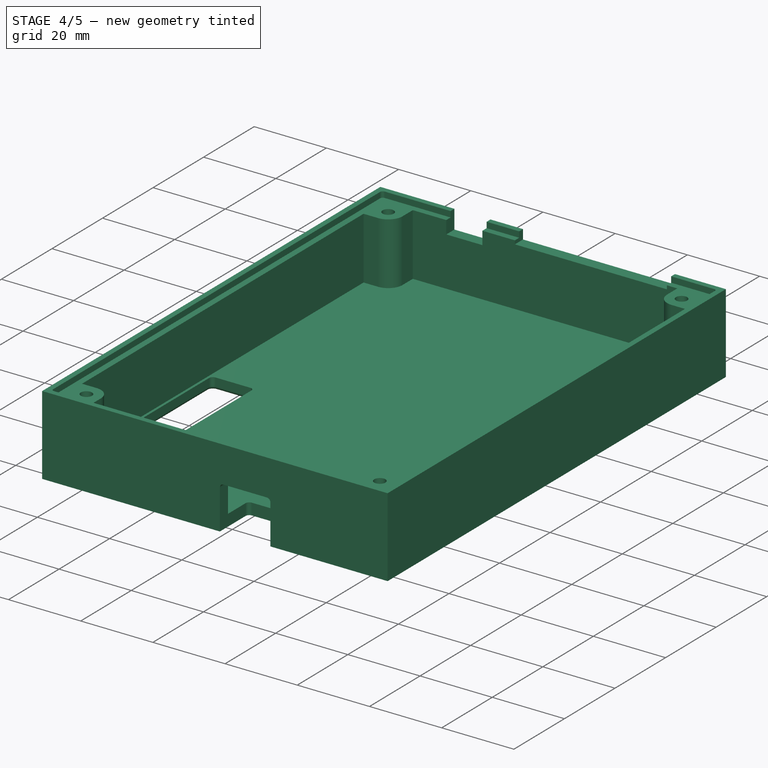
[diagram: stage 4 of 5 — iso view after this stage's code; geometry added in this stage tinted green]
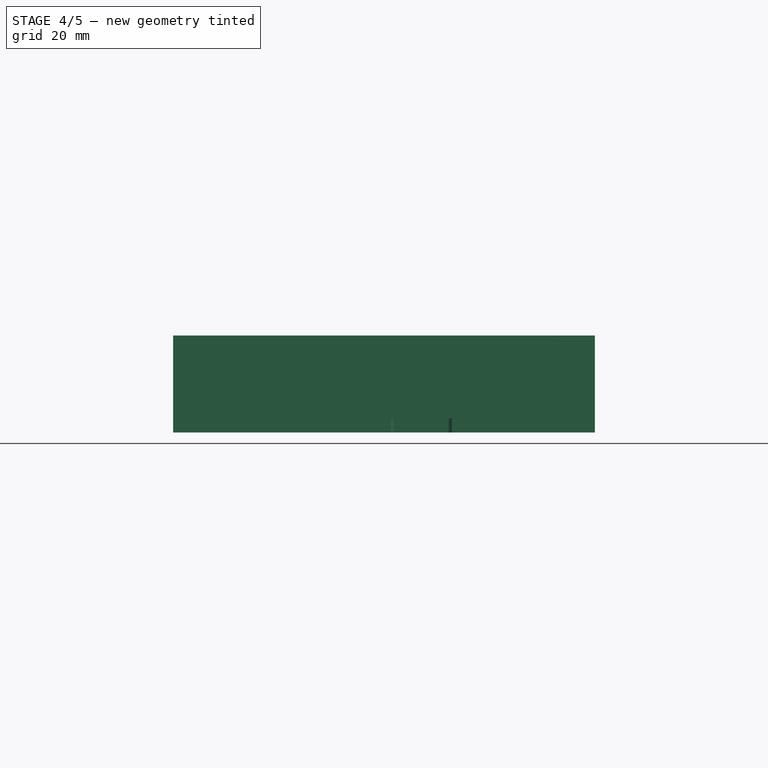
[diagram: stage 4 of 5 — front view after this stage's code; geometry added in this stage tinted green]
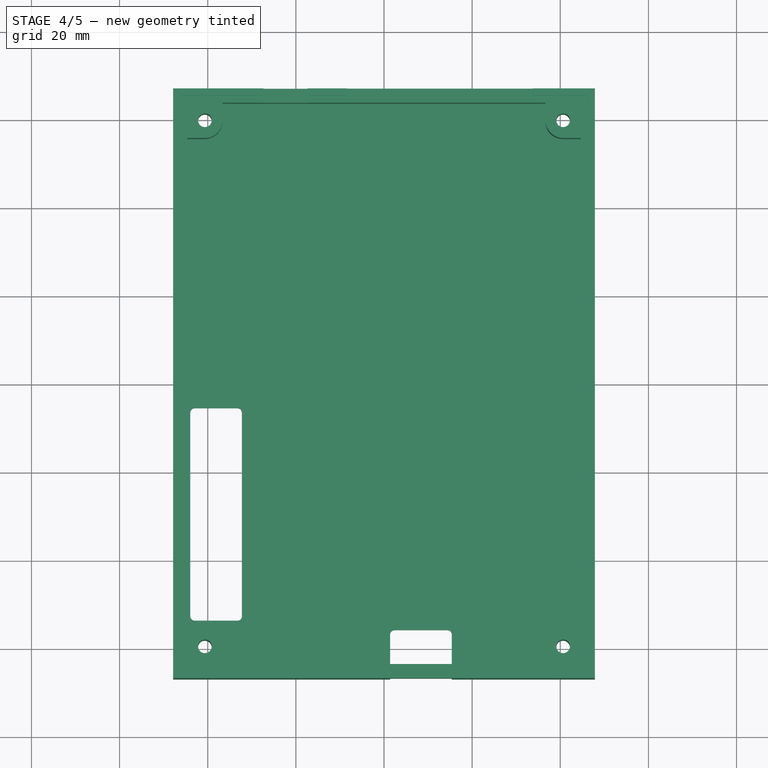
[diagram: stage 4 of 5 — top view after this stage's code; geometry added in this stage tinted green]
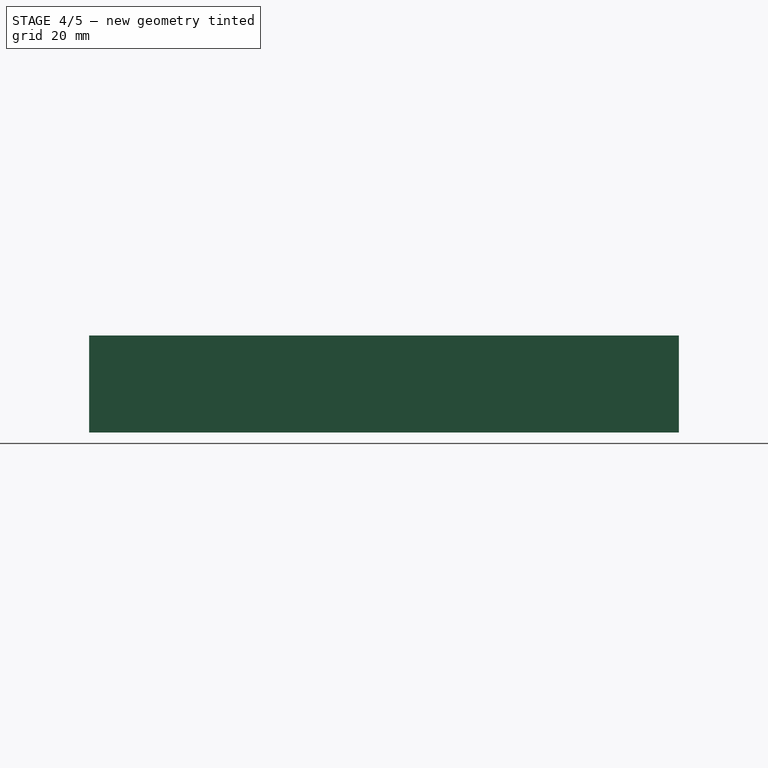
[diagram: stage 4 of 5 — right view after this stage's code; geometry added in this stage tinted green]
FEATURE [Sketcher::SketchObject] Sketch012  label="RodeostatTextCenterSketch"
  FullyConstrained = true
  MapMode = 5
  Support = -> [XY_Plane]
  expr: Constraints[10] = Spreadsheet.RodeostatTextBoxWidth
  expr: Constraints[9] = Spreadsheet.RodeostatTextBoxLength
  sketch-geometry (4):
    g0: LineSegment StartX=-5.198 StartY=43.061 StartZ=0 EndX=5.198 EndY=43.061 EndZ=0
    g1: LineSegment StartX=5.198 StartY=43.061 StartZ=0 EndX=5.198 EndY=-43.061 EndZ=0
    g2: LineSegment StartX=5.198 StartY=-43.061 StartZ=0 EndX=-5.198 EndY=-43.061 EndZ=0
    g3: LineSegment StartX=-5.198 StartY=-43.061 StartZ=0 EndX=-5.198 EndY=43.061 EndZ=0
  constraints (11):
    c: Coincident(g0,g1)
    c: Coincident(g1,g2)
    c: Coincident(g2,g3)
    c: Coincident(g3,g0)
    c: Horizontal(g0)
    c: Horizontal(g2)
    c: Vertical(g1)
    c: Vertical(g3)
    c: Symmetric(g0,g1,g-1)
    c: Distance(g1) = 86.122
    c: Distance(g0) = 10.396
FEATURE [PartDesign::Fillet] Fillet  label="USBCutoutSideFillet"
  Base = -> Pocket006 [Edge159,Edge150,Edge153,Edge156]
  BaseFeature = -> Pocket006
  Radius = 1
  SupportTransform = false
  UseAllEdges = false
  expr: Radius = Spreadsheet.USBCutoutFilletRadius
FEATURE [PartDesign::Fillet] Fillet001  label="Header5X2CutoutSideFillet"
  Base = -> Fillet [Edge159,Edge154,Edge156,Edge158]
  BaseFeature = -> Fillet
  Radius = 1
  SupportTransform = false
  UseAllEdges = false
  expr: Radius = Spreadsheet.Header5X2CutoutFillet
FEATURE [PartDesign::Fillet] Fillet002  label="InsideLipFillet"
  Base = -> Fillet001 [Edge649,Edge653,Edge648,Edge647]
  BaseFeature = -> Fillet001
  Radius = 0.75
  SupportTransform = false
  UseAllEdges = false
  expr: Radius = Spreadsheet.LipFilletRadius
FEATURE [PartDesign::Fillet] Fillet003  label="Header5X2OutsideFillet"
  Base = -> Fillet002 [Edge210]
  BaseFeature = -> Fillet002
  Radius = 1
  SupportTransform = false
  UseAllEdges = false
  expr: Radius = Spreadsheet.OutsideFilletRadius
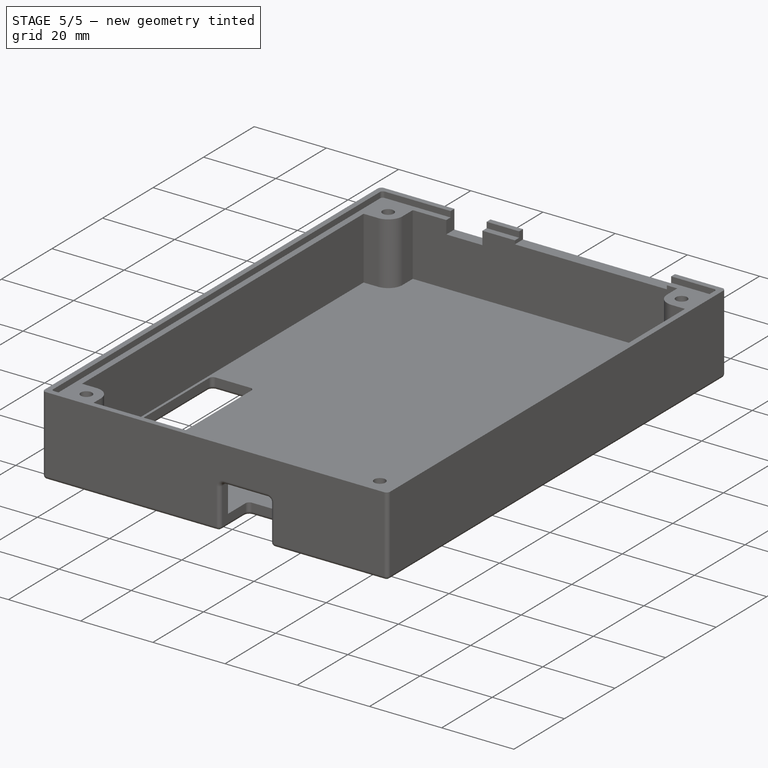
[diagram: stage 5 of 5 — iso view after this stage's code; geometry added in this stage tinted green]
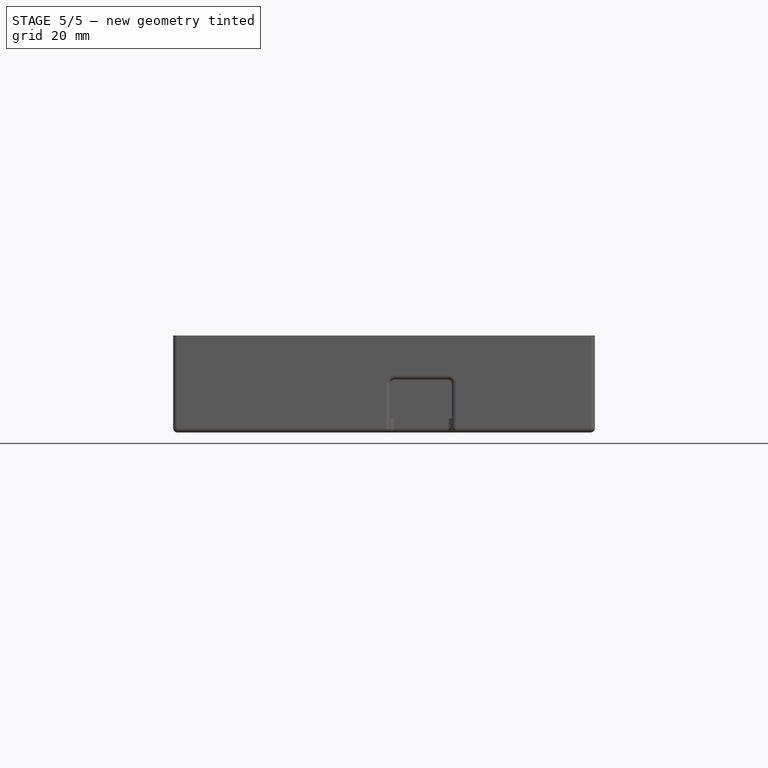
[diagram: stage 5 of 5 — front view after this stage's code; geometry added in this stage tinted green]
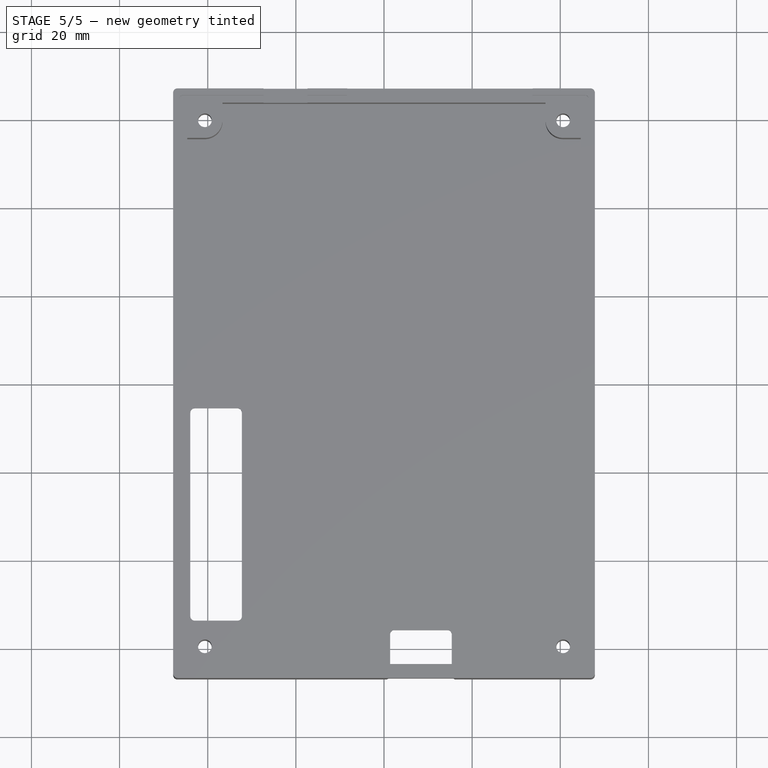
[diagram: stage 5 of 5 — top view after this stage's code; geometry added in this stage tinted green]
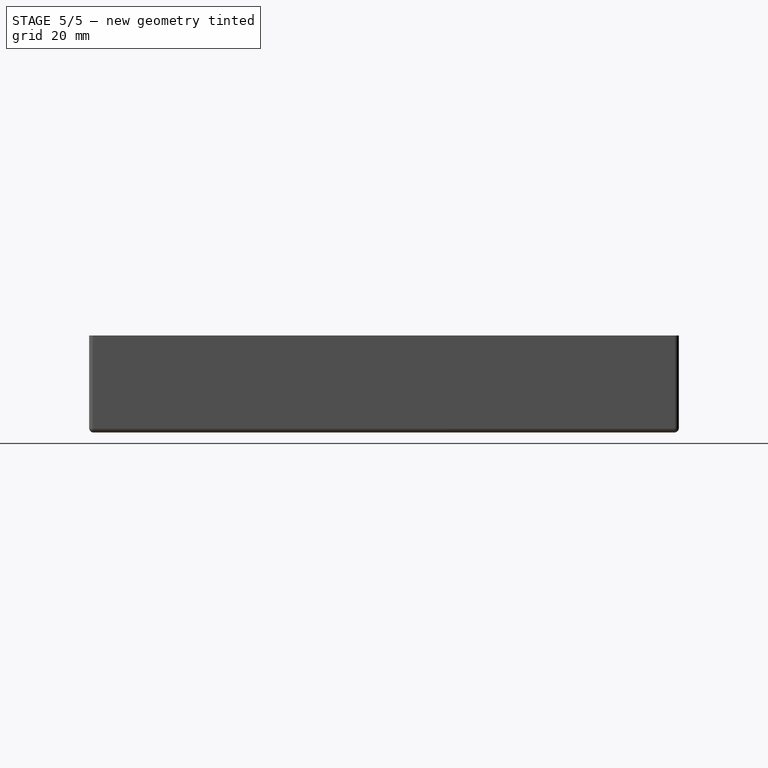
[diagram: stage 5 of 5 — right view after this stage's code; geometry added in this stage tinted green]
FEATURE [PartDesign::Fillet] Fillet004  label="OutsideEdgeFillet"
  Base = -> Fillet003 [Edge11,Edge154,Edge432,Edge529,Edge13,Edge158,Edge440,Edge534,Edge15,Edge162,Edge442,Edge537,Edge17,Edge169,Edge429,Edge528,Edge18,Edge16,Edge14,Edge12,Edge10,Edge9,Edge147,Edge149,Edge430,Edge428,Edge427,Edge166,Edge164]
  BaseFeature = -> Fillet003
  Radius = 1
  SupportTransform = false
  UseAllEdges = false
  expr: Radius = Spreadsheet.OutsideFilletRadius
FEATURE [Part::Part2DObjectPython] ShapeString001  label="WRKShapeString"  # Draft 2D object (typed FeaturePython)
  FontFile = ./fonts/UbuntuMono-B.ttf
  MakeFace = true
  Placement = pos=(-27.7,66.9,15.6) rot=(-1,0,0;1.5708rad)
  Size = 2.2
  String = W
  Tracking = 0
  expr: .Placement.Base.x = Spreadsheet.WRKElectrodePosX
  expr: .Placement.Base.y = Spreadsheet.WRKElectrodePosY
  expr: .Placement.Base.z = Spreadsheet.WRKElectrodePosZ
  expr: Size = Spreadsheet.ElectrodeLabelSize
  expr: String = Spreadsheet.WRKElectrodeString
FEATURE [Part::Part2DObjectPython] ShapeString002  label="REFShapeString"  # Draft 2D object (typed FeaturePython)
  FontFile = ./fonts/UbuntuMono-B.ttf
  MakeFace = true
  Placement = pos=(-23.9,66.9,15.6) rot=(-1,0,0;1.5708rad)
  Size = 2.2
  String = R
  Tracking = 0
  expr: .Placement.Base.x = Spreadsheet.REFElectrodePosX
  expr: .Placement.Base.y = Spreadsheet.REFElectrodePosY
  expr: .Placement.Base.z = Spreadsheet.REFElectrodePosZ
  expr: Size = Spreadsheet.ElectrodeLabelSize
  expr: String = Spreadsheet.REFElectrodeString
FEATURE [Part::Part2DObjectPython] ShapeString003  label="CTRShapeString"  # Draft 2D object (typed FeaturePython)
  FontFile = ./fonts/UbuntuMono-B.ttf
  MakeFace = true
  Placement = pos=(-20.3,66.9,15.6) rot=(-1,0,0;1.5708rad)
  Size = 2.2
  String = C
  Tracking = 0
  expr: .Placement.Base.x = Spreadsheet.CTRElectrodePoxX
  expr: .Placement.Base.y = Spreadsheet.CTRElectrodePosY
  expr: .Placement.Base.z = Spreadsheet.CTRElectrodePosZ
  expr: Size = Spreadsheet.ElectrodeLabelSize
  expr: String = Spreadsheet.CTRElectrodeString
FEATURE [PartDesign::Plane] DatumPlane002  label="FrontDatumPlane"
  AttachmentOffset = pos=(0,0,66.9) rot=(0,0,1;0rad)
  Length = 109.535
  MapMode = 5
  Placement = pos=(0,66.9,1.49e-14) rot=(0,0.707107,0.707107;3.14159rad)
  ResizeMode = 0
  Support = -> [XZ_Plane]
  Width = 63.8347
  expr: .AttachmentOffset.Base.z = Spreadsheet.Length * 0.5
FEATURE [Sketcher::SketchObject] Sketch013  label="ElectLabelAlignSketch"
  FullyConstrained = true
  MapMode = 5
  Placement = pos=(0,66.9,1.49e-14) rot=(0,0.707107,0.707107;3.14159rad)
  Support = -> [DatumPlane002]
  expr: Constraints[10] = Spreadsheet.PinConnCutoutWidth
  expr: Constraints[4] = Spreadsheet.PinConnCutoutCenterX
  expr: Constraints[5] = Spreadsheet.LipDatumPlaneHeight - Spreadsheet.PinConnCutoutDepth
  sketch-geometry (7):
    g0: LineSegment StartX=22.35 StartY=0 StartZ=0 EndX=0 EndY=0 EndZ=0
    g1: LineSegment StartX=22.35 StartY=0 StartZ=0 EndX=22.35 EndY=16.8 EndZ=0
    g2: LineSegment StartX=17.35 StartY=16.8 StartZ=0 EndX=22.35 EndY=16.8 EndZ=0
    g3: LineSegment StartX=22.35 StartY=16.8 StartZ=0 EndX=27.35 EndY=16.8 EndZ=0
    g4: LineSegment StartX=22.35 StartY=16.8 StartZ=0 EndX=22.35 EndY=6.8 EndZ=0
    g5: LineSegment StartX=27.35 StartY=16.8 StartZ=0 EndX=27.35 EndY=6.8 EndZ=0
    g6: LineSegment StartX=17.35 StartY=16.8 StartZ=0 EndX=17.35 EndY=6.8 EndZ=0
  constraints (21):
    c: Horizontal(g0)
    c: Coincident(g0,g-1)
    c: Coincident(g1,g0)
    c: Vertical(g1)
    c: DistanceX(g0,g0) = 22.35
    c: DistanceY(g1,g1) = 16.8
    c: Coincident(g2,g3)
    c: Equal(g2,g3)
    c: Horizontal(g2)
    c: Horizontal(g3)
    c: DistanceX(g2,g3) = 10
    c: Coincident(g2,g1)
    c: Vertical(g4)
    c: Vertical(g5)
    c: Equal(g4,g5)
    c: Vertical(g6)
    c: Equal(g6,g4)
    c: DistanceY(g6,g6) = 10
    c: Coincident(g4,g2)
    c: Coincident(g6,g2)
    c: Coincident(g5,g3)
FEATURE [PartDesign::Pocket] Pocket007  label="WRKLabelPocket"
  BaseFeature = -> Fillet004
  Direction = (0,-1,-2e-16)
  Length = 0.6
  Length2 = 5
  Profile = -> ShapeString001
  ReferenceAxis = -> ShapeString001 [N_Axis]
  Type = 0
  expr: Length = Spreadsheet.ElectrodeLabelPocketDepth
FEATURE [PartDesign::Pocket] Pocket008  label="REFLabelPocket"
  BaseFeature = -> Pocket007
  Direction = (0,-1,-2e-16)
  Length = 0.6
  Length2 = 5
  Profile = -> ShapeString002
  ReferenceAxis = -> ShapeString002 [N_Axis]
  Type = 0
  expr: Length = Spreadsheet.ElectrodeLabelPocketDepth
FEATURE [PartDesign::Pocket] Pocket009  label="CTRLabelPocket"
  BaseFeature = -> Pocket008
  Direction = (0,-1,-2e-16)
  Length = 0.6
  Length2 = 5
  Profile = -> ShapeString003
  ReferenceAxis = -> ShapeString003 [N_Axis]
  Type = 0
  expr: Length = Spreadsheet.ElectrodeLabelPocketDepth
FEATURE [PartDesign::Body] Body
  Group = -> [Sketch,Pad,DatumPlane,Sketch001,Pad001,DatumPlane001,Sketch002,Pad002,Sketch003,Pad003,Sketch004,Pocket,Sketch007,Sketch008,Pocket001,Pocket002,Sketch009,Pocket003,Sketch010,Pocket004,Sketch011,Pocket005,ShapeString,Pocket006,Sketch012,Fillet,Fillet001,Fillet002,Fillet003,Fillet004,DatumPlane002,Sketch013,ShapeString001,ShapeString002,ShapeString003,Pocket007,Pocket008,Pocket009]
  Origin = -> Origin
  Tip = -> Pocket009
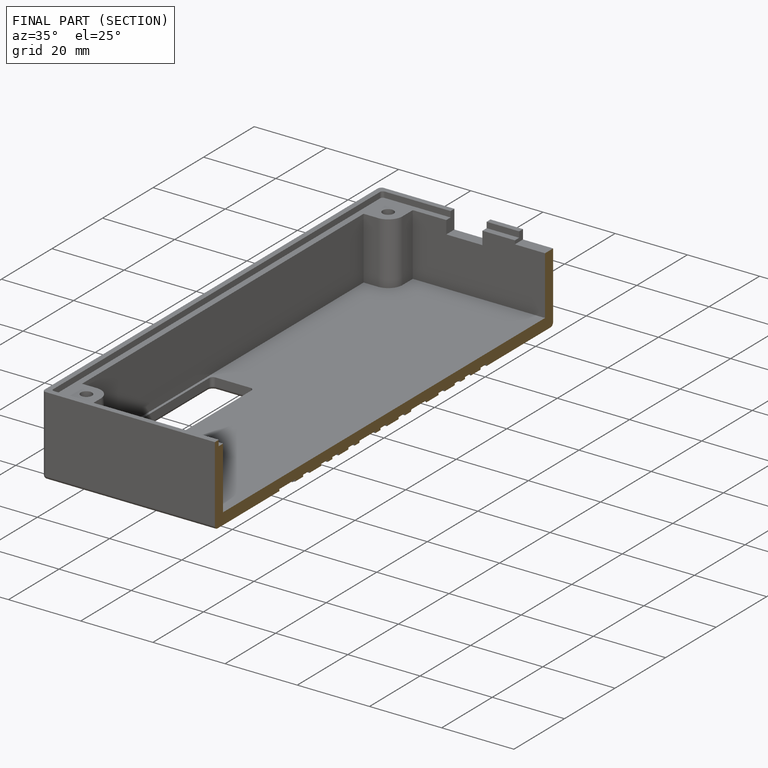
[diagram: finished part — half-section view (interior)]
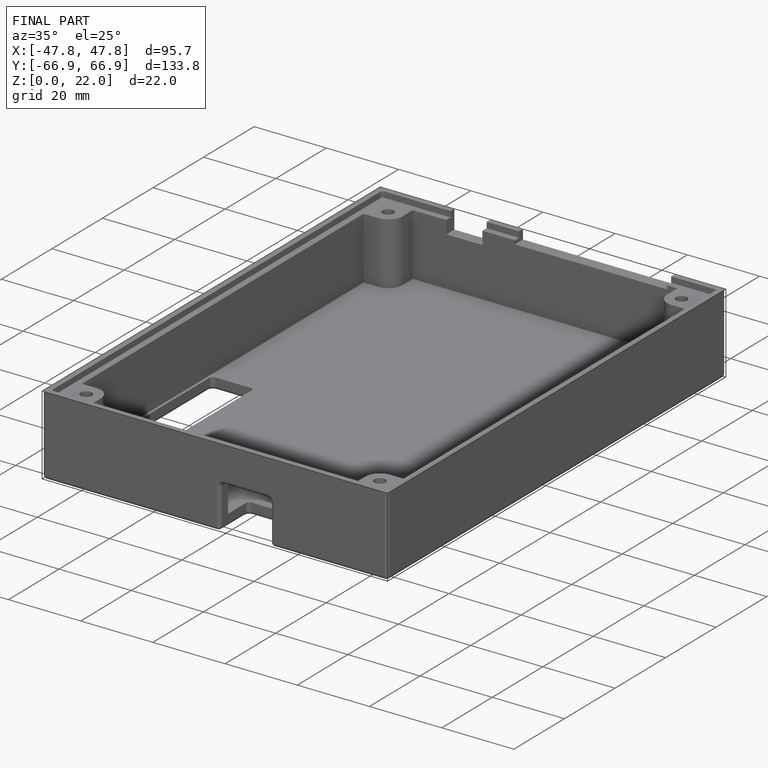
[diagram: finished part — iso view with bounding-box wireframe]
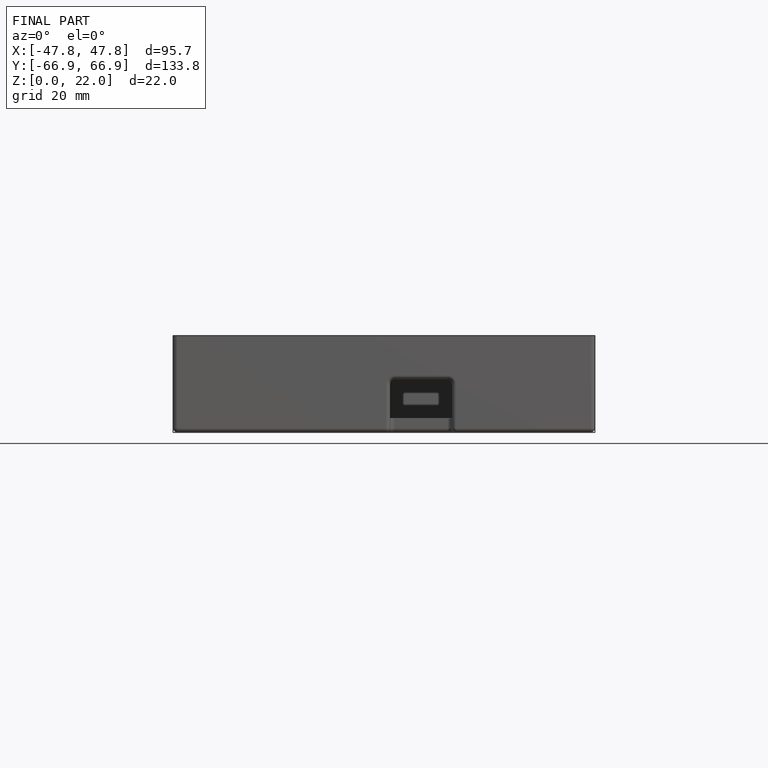
[diagram: finished part — front view with bounding-box wireframe]
